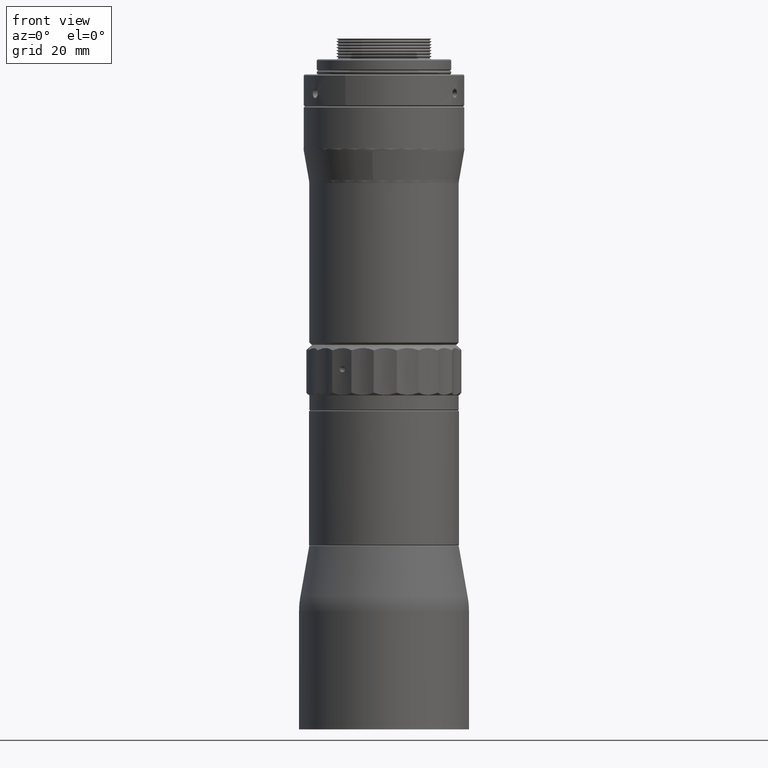
[diagram: clean part render]
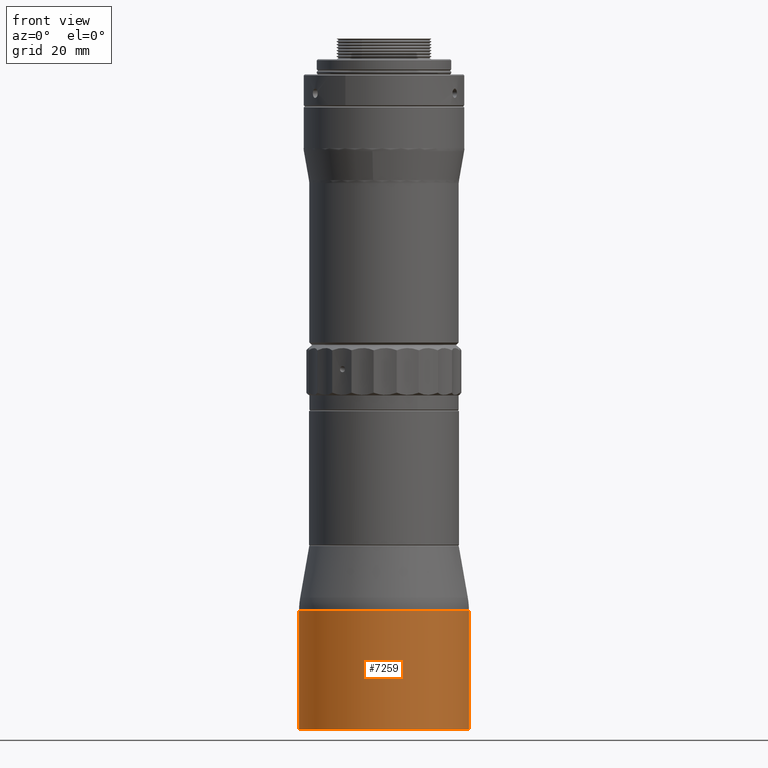
[diagram: same view with one face highlighted and labeled with its STEP entity id]
A machine part, front view. The second image highlights one B-rep face of the part: STEP entity #7259.
In plain terms, the highlighted cylindrical surface (partial cylindrical patch) has radius 22.75 mm, axis along (-0, 0, -1).
Its self-contained STEP definition (entity closure, byte-faithful):
#889 = VERTEX_POINT ( 'NONE', #51867 ) ;
#1196 = FACE_OUTER_BOUND ( 'NONE', #56499, .T. ) ;
#1651 = CARTESIAN_POINT ( 'NONE',  ( -1.299457719296110300E-015, -6.939050733991564900E-015, -57.14791194329446700 ) ) ;
#2641 = VECTOR ( 'NONE', #61473, 1000.000000000000000 ) ;
#4771 = EDGE_CURVE ( 'NONE', #16046, #31140, #6106, .T. ) ;
#5406 = CARTESIAN_POINT ( 'NONE',  ( -22.63942814657736200, 2.240249233933967200, -89.20517089341908000 ) ) ;
#6106 = LINE ( 'NONE', #5406, #2641 ) ;
#6213 = ORIENTED_EDGE ( 'NONE', *, *, #4771, .T. ) ;
#7259 = ADVANCED_FACE ( 'NONE', ( #1196 ), #14193, .T. ) ;
#7959 = AXIS2_PLACEMENT_3D ( 'NONE', #59645, #59879, #20120 ) ;
#14193 = CYLINDRICAL_SURFACE ( 'NONE', #43975, 22.74999831723468400 ) ;
#15328 = ORIENTED_EDGE ( 'NONE', *, *, #60094, .T. ) ;
#15472 = AXIS2_PLACEMENT_3D ( 'NONE', #1651, #40571, #51773 ) ;
#16046 = VERTEX_POINT ( 'NONE', #17747 ) ;
#17747 = CARTESIAN_POINT ( 'NONE',  ( -22.63942814657735900, 2.240249233933968600, -57.14791194329446700 ) ) ;
#18034 = CARTESIAN_POINT ( 'NONE',  ( -1.354797919381899500E-015, -6.933574630971414700E-015, -89.20517089341908000 ) ) ;
#20120 = DIRECTION ( 'NONE',  ( -0.9951397723588595300, 0.09847250108308060200, 0.0000000000000000000 ) ) ;
#22282 = CIRCLE ( 'NONE', #15472, 22.74999831723468400 ) ;
#23483 = CARTESIAN_POINT ( 'NONE',  ( 22.63942814657736200, -2.240249233933978800, -89.20517089341908000 ) ) ;
#23643 = DIRECTION ( 'NONE',  ( -0.9951397723588595300, 0.09847250108308060200, 0.0000000000000000000 ) ) ;
#31140 = VERTEX_POINT ( 'NONE', #62824 ) ;
#34435 = DIRECTION ( 'NONE',  ( -1.726292324989129000E-018, 1.708225593669714600E-019, -1.000000000000000000 ) ) ;
#40571 = DIRECTION ( 'NONE',  ( -1.726292324989129000E-018, 1.708225593669714600E-019, -1.000000000000000000 ) ) ;
#41848 = EDGE_CURVE ( 'NONE', #31140, #57761, #49756, .T. ) ;
#43450 = CARTESIAN_POINT ( 'NONE',  ( 22.63942814657736200, -2.240249233933978800, -88.80212321226316900 ) ) ;
#43637 = EDGE_CURVE ( 'NONE', #889, #57761, #61528, .T. ) ;
#43975 = AXIS2_PLACEMENT_3D ( 'NONE', #18034, #46820, #23643 ) ;
#46683 = VECTOR ( 'NONE', #34435, 1000.000000000000000 ) ;
#46820 = DIRECTION ( 'NONE',  ( -1.726292324989129000E-018, 1.708225593669714600E-019, -1.000000000000000000 ) ) ;
#49756 = CIRCLE ( 'NONE', #7959, 22.74999831723468400 ) ;
#51773 = DIRECTION ( 'NONE',  ( -0.9951397723588595300, 0.09847250108308060200, 0.0000000000000000000 ) ) ;
#51867 = CARTESIAN_POINT ( 'NONE',  ( 22.63942814657735900, -2.240249233933977000, -57.14791194329446700 ) ) ;
#55518 = ORIENTED_EDGE ( 'NONE', *, *, #41848, .T. ) ;
#56499 = EDGE_LOOP ( 'NONE', ( #65692, #15328, #6213, #55518 ) ) ;
#57761 = VERTEX_POINT ( 'NONE', #43450 ) ;
#59645 = CARTESIAN_POINT ( 'NONE',  ( -1.354102141263315200E-015, -6.933643480607856500E-015, -88.80212321226316900 ) ) ;
#59879 = DIRECTION ( 'NONE',  ( 1.726292324989129000E-018, -1.708225593669714600E-019, 1.000000000000000000 ) ) ;
#60094 = EDGE_CURVE ( 'NONE', #889, #16046, #22282, .T. ) ;
#61473 = DIRECTION ( 'NONE',  ( -1.726292324989129000E-018, 1.708225593669714600E-019, -1.000000000000000000 ) ) ;
#61528 = LINE ( 'NONE', #23483, #46683 ) ;
#62824 = CARTESIAN_POINT ( 'NONE',  ( -22.63942814657736200, 2.240249233933967200, -88.80212321226316900 ) ) ;
#65692 = ORIENTED_EDGE ( 'NONE', *, *, #43637, .F. ) ;